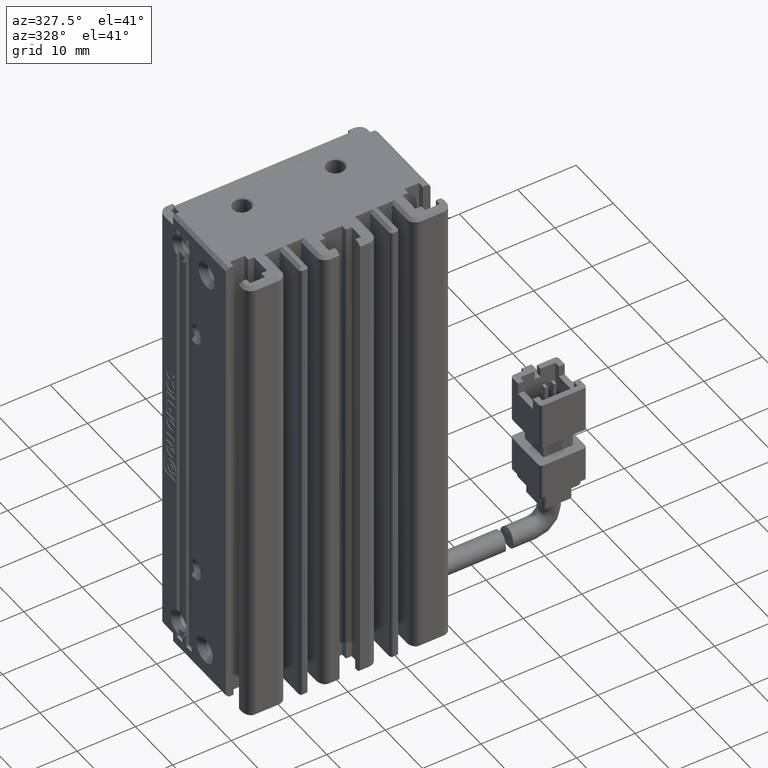
[diagram: clean part render]
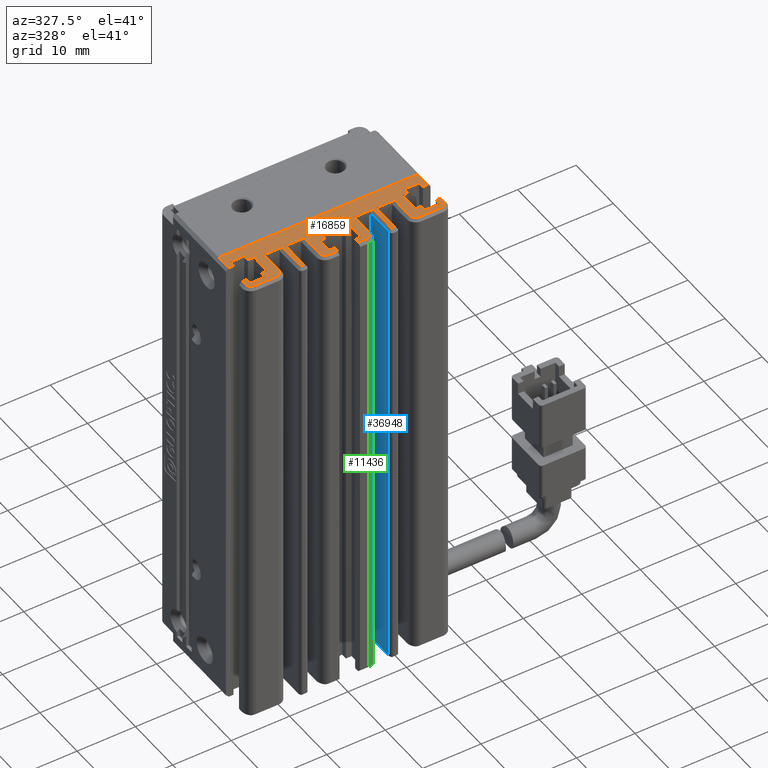
[diagram: same view with three faces highlighted in distinct colors, each labeled with its STEP entity id]
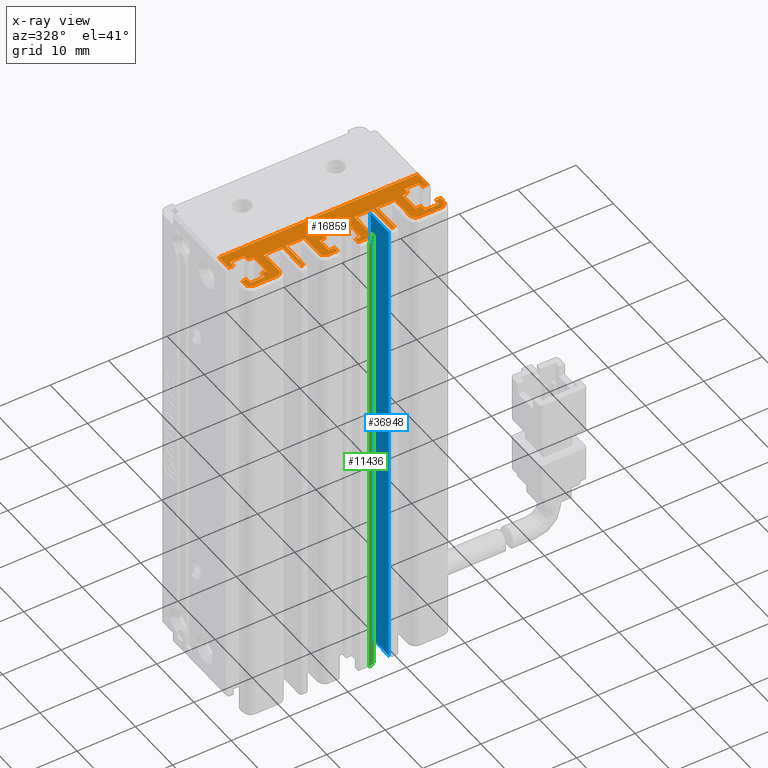
[diagram: x-ray of the same camera — body ghosted, the three highlighted faces saturated]
A machine part, auxiliary view with three faces highlighted in distinct colors.
The next image is the same camera in x-ray (body ghosted, the three faces saturated) — at least one of them is partly hidden behind the body in this view.
Their STEP definitions:

[orange] entity #16859 — the highlighted planar face has unit normal (-0, 0, 1).
#19 = VECTOR ( 'NONE', #7257, 1000.000000000000000 ) ;
#97 = EDGE_CURVE ( 'NONE', #5826, #14053, #20467, .T. ) ;
#101 = CARTESIAN_POINT ( 'NONE',  ( 40.92537974683542500, 15.79073232304837000, -74.00000000000001400 ) ) ;
#172 = VERTEX_POINT ( 'NONE', #1475 ) ;
#419 = CARTESIAN_POINT ( 'NONE',  ( 40.92537974683542500, 11.49073232304838800, -74.00000000000001400 ) ) ;
#484 = DIRECTION ( 'NONE',  ( 1.000000000000000000, 0.0000000000000000000, 0.0000000000000000000 ) ) ;
#489 = ORIENTED_EDGE ( 'NONE', *, *, #14678, .T. ) ;
#623 = EDGE_CURVE ( 'NONE', #20093, #14053, #29204, .T. ) ;
#631 = CARTESIAN_POINT ( 'NONE',  ( 24.72537974683541900, 17.79073232304837000, -74.00000000000001400 ) ) ;
#659 = CARTESIAN_POINT ( 'NONE',  ( 39.17537974683542500, 7.083797468354437600, -74.00000000000001400 ) ) ;
#666 = CARTESIAN_POINT ( 'NONE',  ( 40.92537974683542500, 12.29073232304837200, -74.00000000000001400 ) ) ;
#695 = VERTEX_POINT ( 'NONE', #23657 ) ;
#715 = VERTEX_POINT ( 'NONE', #20185 ) ;
#766 = EDGE_CURVE ( 'NONE', #21141, #715, #25457, .T. ) ;
#796 = CIRCLE ( 'NONE', #35662, 1.000000000065747000 ) ;
#870 = VERTEX_POINT ( 'NONE', #10108 ) ;
#941 = DIRECTION ( 'NONE',  ( 0.0000000000000000000, 1.000000000000000000, -0.0000000000000000000 ) ) ;
#943 = DIRECTION ( 'NONE',  ( 0.0000000000000000000, 0.0000000000000000000, -1.000000000000000000 ) ) ;
#978 = VERTEX_POINT ( 'NONE', #6934 ) ;
#1260 = LINE ( 'NONE', #32387, #18578 ) ;
#1290 = ORIENTED_EDGE ( 'NONE', *, *, #27907, .F. ) ;
#1322 = VERTEX_POINT ( 'NONE', #24233 ) ;
#1475 = CARTESIAN_POINT ( 'NONE',  ( 27.22537974683542900, 12.29073232304837200, -74.00000000000001400 ) ) ;
#1493 = VECTOR ( 'NONE', #7056, 1000.000000000000000 ) ;
#1572 = CARTESIAN_POINT ( 'NONE',  ( 57.92537974683542500, 7.083797468354437600, -74.00000000000001400 ) ) ;
#1707 = DIRECTION ( 'NONE',  ( -0.0000000000000000000, -1.000000000000000000, 0.0000000000000000000 ) ) ;
#1842 = EDGE_CURVE ( 'NONE', #21141, #19210, #13081, .T. ) ;
#1914 = VERTEX_POINT ( 'NONE', #12392 ) ;
#1978 = VECTOR ( 'NONE', #27102, 1000.000000000000000 ) ;
#2098 = VECTOR ( 'NONE', #37861, 1000.000000000000000 ) ;
#2125 = EDGE_CURVE ( 'NONE', #32413, #4554, #6154, .T. ) ;
#2157 = VECTOR ( 'NONE', #21007, 1000.000000000000000 ) ;
#2225 = DIRECTION ( 'NONE',  ( 6.938893903907234700E-015, 1.000000000000000000, -0.0000000000000000000 ) ) ;
#2343 = DIRECTION ( 'NONE',  ( 1.000000000000000000, 0.0000000000000000000, 0.0000000000000000000 ) ) ;
#2374 = EDGE_CURVE ( 'NONE', #21175, #36823, #35005, .T. ) ;
#2407 = ORIENTED_EDGE ( 'NONE', *, *, #4382, .T. ) ;
#2416 = EDGE_CURVE ( 'NONE', #27306, #19789, #3826, .T. ) ;
#2437 = ORIENTED_EDGE ( 'NONE', *, *, #26029, .F. ) ;
#2717 = DIRECTION ( 'NONE',  ( 8.673617379884073300E-015, -1.000000000000000000, -0.0000000000000000000 ) ) ;
#2921 = VERTEX_POINT ( 'NONE', #33559 ) ;
#3030 = EDGE_CURVE ( 'NONE', #23424, #19575, #35346, .T. ) ;
#3108 = CARTESIAN_POINT ( 'NONE',  ( 32.92537974683543200, 7.083797468354437600, -74.00000000000001400 ) ) ;
#3336 = CARTESIAN_POINT ( 'NONE',  ( 48.92537974683541100, 11.49073232304838600, -74.00000000000001400 ) ) ;
#3354 = DIRECTION ( 'NONE',  ( 1.000000000000000000, 0.0000000000000000000, 0.0000000000000000000 ) ) ;
#3382 = VERTEX_POINT ( 'NONE', #29545 ) ;
#3468 = VECTOR ( 'NONE', #4013, 1000.000000000000000 ) ;
#3578 = VECTOR ( 'NONE', #32622, 1000.000000000000000 ) ;
#3606 = VERTEX_POINT ( 'NONE', #7567 ) ;
#3672 = ORIENTED_EDGE ( 'NONE', *, *, #23542, .T. ) ;
#3753 = VECTOR ( 'NONE', #4189, 1000.000000000000000 ) ;
#3766 = CARTESIAN_POINT ( 'NONE',  ( 53.12537974683541400, 12.49073232304837200, -74.00000000000318300 ) ) ;
#3826 = LINE ( 'NONE', #25806, #17924 ) ;
#3932 = CARTESIAN_POINT ( 'NONE',  ( 24.72537974683541900, 7.083797468354437600, -74.00000000000001400 ) ) ;
#4013 = DIRECTION ( 'NONE',  ( -1.000000000000000000, -0.0000000000000000000, -0.0000000000000000000 ) ) ;
#4068 = DIRECTION ( 'NONE',  ( 0.0000000000000000000, 1.000000000000000000, -0.0000000000000000000 ) ) ;
#4189 = DIRECTION ( 'NONE',  ( -1.000000000000000000, 1.734723475976805300E-015, -0.0000000000000000000 ) ) ;
#4191 = CARTESIAN_POINT ( 'NONE',  ( 54.62537974683541400, 16.79073232304837000, -74.00000000000001400 ) ) ;
#4275 = VERTEX_POINT ( 'NONE', #631 ) ;
#4301 = VERTEX_POINT ( 'NONE', #6235 ) ;
#4382 = EDGE_CURVE ( 'NONE', #19210, #18690, #1260, .T. ) ;
#4398 = CARTESIAN_POINT ( 'NONE',  ( 43.67537974683542500, 7.083797468354437600, -74.00000000000001400 ) ) ;
#4554 = VERTEX_POINT ( 'NONE', #4581 ) ;
#4581 = CARTESIAN_POINT ( 'NONE',  ( 42.67537974683542500, 14.79073232304837000, -74.00000000000001400 ) ) ;
#4617 = VECTOR ( 'NONE', #13976, 1000.000000000000000 ) ;
#4682 = CARTESIAN_POINT ( 'NONE',  ( 53.12537974683542800, 11.49073232305455500, -73.99999999998819100 ) ) ;
#4810 = PLANE ( 'NONE',  #35226 ) ;
#4856 = EDGE_CURVE ( 'NONE', #22572, #23614, #35113, .T. ) ;
#4928 = ORIENTED_EDGE ( 'NONE', *, *, #13885, .T. ) ;
#5058 = CARTESIAN_POINT ( 'NONE',  ( 57.92537974683541100, 7.083797468354437600, -74.00000000000001400 ) ) ;
#5068 = ORIENTED_EDGE ( 'NONE', *, *, #10967, .T. ) ;
#5150 = CARTESIAN_POINT ( 'NONE',  ( 52.12537974684072100, 12.49073232304837200, -73.99999999998819100 ) ) ;
#5215 = CARTESIAN_POINT ( 'NONE',  ( 27.22537974683543300, 16.79073232304837400, -74.00000000000001400 ) ) ;
#5354 = DIRECTION ( 'NONE',  ( 1.000000000000000000, 0.0000000000000000000, 0.0000000000000000000 ) ) ;
#5397 = CARTESIAN_POINT ( 'NONE',  ( 48.42537974683543200, 7.083797468354437600, -74.00000000000001400 ) ) ;
#5685 = EDGE_CURVE ( 'NONE', #31359, #6260, #13773, .T. ) ;
#5734 = VECTOR ( 'NONE', #4068, 1000.000000000000000 ) ;
#5826 = VERTEX_POINT ( 'NONE', #33904 ) ;
#5873 = DIRECTION ( 'NONE',  ( -1.000000000000000000, 0.0000000000000000000, 0.0000000000000000000 ) ) ;
#5898 = ORIENTED_EDGE ( 'NONE', *, *, #33228, .F. ) ;
#5903 = ORIENTED_EDGE ( 'NONE', *, *, #17628, .F. ) ;
#5968 = DIRECTION ( 'NONE',  ( 1.000000000000000000, 2.001604010742476800E-015, -0.0000000000000000000 ) ) ;
#6113 = AXIS2_PLACEMENT_3D ( 'NONE', #15567, #30064, #9796 ) ;
#6154 = LINE ( 'NONE', #18869, #20323 ) ;
#6235 = CARTESIAN_POINT ( 'NONE',  ( 56.92537974683542500, 11.49073232302613500, -74.00000000004503400 ) ) ;
#6260 = VERTEX_POINT ( 'NONE', #18826 ) ;
#6377 = VERTEX_POINT ( 'NONE', #19334 ) ;
#6470 = EDGE_CURVE ( 'NONE', #19789, #30806, #12362, .T. ) ;
#6534 = ORIENTED_EDGE ( 'NONE', *, *, #31832, .T. ) ;
#6687 = ORIENTED_EDGE ( 'NONE', *, *, #32560, .F. ) ;
#6724 = ORIENTED_EDGE ( 'NONE', *, *, #14460, .T. ) ;
#6735 = CARTESIAN_POINT ( 'NONE',  ( 39.17537974683542500, 14.79073232304837000, -74.00000000000001400 ) ) ;
#6748 = LINE ( 'NONE', #7436, #25068 ) ;
#6749 = CARTESIAN_POINT ( 'NONE',  ( 42.67537974683542500, 12.29073232304837200, -74.00000000000001400 ) ) ;
#6754 = CARTESIAN_POINT ( 'NONE',  ( 27.22537974683543600, 13.29073232304837000, -74.00000000000001400 ) ) ;
#6882 = ORIENTED_EDGE ( 'NONE', *, *, #26100, .F. ) ;
#6934 = CARTESIAN_POINT ( 'NONE',  ( 42.67537974683542500, 15.79073232304837000, -74.00000000000001400 ) ) ;
#6980 = ORIENTED_EDGE ( 'NONE', *, *, #32450, .T. ) ;
#6997 = VERTEX_POINT ( 'NONE', #37076 ) ;
#7056 = DIRECTION ( 'NONE',  ( -1.000000000000000000, 1.334402673828318000E-015, -0.0000000000000000000 ) ) ;
#7078 = LINE ( 'NONE', #22275, #3468 ) ;
#7239 = ORIENTED_EDGE ( 'NONE', *, *, #6470, .T. ) ;
#7257 = DIRECTION ( 'NONE',  ( 0.0000000000000000000, 1.000000000000000000, -0.0000000000000000000 ) ) ;
#7295 = DIRECTION ( 'NONE',  ( -8.673617379884043400E-015, -1.000000000000000000, -0.0000000000000000000 ) ) ;
#7364 = VECTOR ( 'NONE', #1707, 1000.000000000000000 ) ;
#7427 = CARTESIAN_POINT ( 'NONE',  ( 33.42537974683543200, 7.083797468354437600, -74.00000000000001400 ) ) ;
#7436 = CARTESIAN_POINT ( 'NONE',  ( 57.12537974683549900, 7.083797468354550400, -74.00000000000001400 ) ) ;
#7448 = LINE ( 'NONE', #11998, #1978 ) ;
#7521 = VERTEX_POINT ( 'NONE', #11920 ) ;
#7567 = CARTESIAN_POINT ( 'NONE',  ( 57.12537974683542100, 17.79073232304837000, -74.00000000000001400 ) ) ;
#7574 = LINE ( 'NONE', #20361, #2157 ) ;
#7734 = LINE ( 'NONE', #16198, #19 ) ;
#7739 = EDGE_CURVE ( 'NONE', #695, #31359, #30906, .T. ) ;
#7782 = CARTESIAN_POINT ( 'NONE',  ( 28.22537974683543600, 7.083797468354437600, -74.00000000000001400 ) ) ;
#7829 = EDGE_CURVE ( 'NONE', #8667, #21175, #15241, .T. ) ;
#8000 = ORIENTED_EDGE ( 'NONE', *, *, #18193, .T. ) ;
#8085 = EDGE_CURVE ( 'NONE', #22123, #29078, #11042, .T. ) ;
#8129 = VERTEX_POINT ( 'NONE', #6754 ) ;
#8142 = ORIENTED_EDGE ( 'NONE', *, *, #20108, .F. ) ;
#8272 = ORIENTED_EDGE ( 'NONE', *, *, #24934, .T. ) ;
#8430 = ORIENTED_EDGE ( 'NONE', *, *, #22056, .T. ) ;
#8667 = VERTEX_POINT ( 'NONE', #11033 ) ;
#8882 = CARTESIAN_POINT ( 'NONE',  ( 40.92537974683541100, 13.29073232304834400, -74.00000000000001400 ) ) ;
#8921 = EDGE_CURVE ( 'NONE', #172, #2921, #12327, .T. ) ;
#8943 = VECTOR ( 'NONE', #484, 1000.000000000000000 ) ;
#9050 = DIRECTION ( 'NONE',  ( -0.0000000000000000000, -1.000000000000000000, 0.0000000000000000000 ) ) ;
#9169 = DIRECTION ( 'NONE',  ( -1.000000000000000000, -1.239088197126290800E-016, -0.0000000000000000000 ) ) ;
#9438 = CARTESIAN_POINT ( 'NONE',  ( 36.62537974683543500, 16.49073232304837000, -74.00000000000001400 ) ) ;
#9613 = EDGE_CURVE ( 'NONE', #16101, #8129, #33837, .T. ) ;
#9689 = VECTOR ( 'NONE', #10215, 1000.000000000000000 ) ;
#9712 = LINE ( 'NONE', #25566, #20260 ) ;
#9786 = ORIENTED_EDGE ( 'NONE', *, *, #8085, .T. ) ;
#9796 = DIRECTION ( 'NONE',  ( -1.000000000000000000, 0.0000000000000000000, 0.0000000000000000000 ) ) ;
#9842 = DIRECTION ( 'NONE',  ( 6.938893903907221300E-015, -1.000000000000000000, -0.0000000000000000000 ) ) ;
#9900 = EDGE_CURVE ( 'NONE', #17070, #7521, #13740, .T. ) ;
#9967 = DIRECTION ( 'NONE',  ( 1.000000000000000000, 1.734723475976805300E-015, -0.0000000000000000000 ) ) ;
#10001 = VERTEX_POINT ( 'NONE', #15283 ) ;
#10108 = CARTESIAN_POINT ( 'NONE',  ( 48.42537974683543200, 16.49073232304837000, -74.00000000000001400 ) ) ;
#10145 = ORIENTED_EDGE ( 'NONE', *, *, #19531, .F. ) ;
#10215 = DIRECTION ( 'NONE',  ( 0.0000000000000000000, 1.000000000000000000, -0.0000000000000000000 ) ) ;
#10264 = DIRECTION ( 'NONE',  ( 1.000000000000000000, 0.0000000000000000000, 0.0000000000000000000 ) ) ;
#10544 = LINE ( 'NONE', #31875, #33027 ) ;
#10631 = VERTEX_POINT ( 'NONE', #21394 ) ;
#10775 = CARTESIAN_POINT ( 'NONE',  ( 48.42537974683542500, 11.49073232304838600, -74.00000000000001400 ) ) ;
#10843 = VECTOR ( 'NONE', #28353, 1000.000000000000000 ) ;
#10959 = VECTOR ( 'NONE', #34927, 1000.000000000000000 ) ;
#10960 = AXIS2_PLACEMENT_3D ( 'NONE', #3766, #943, #27157 ) ;
#10967 = EDGE_CURVE ( 'NONE', #19025, #10631, #16766, .T. ) ;
#11033 = CARTESIAN_POINT ( 'NONE',  ( 33.42537974683543200, 11.49073232304837200, -74.00000000000001400 ) ) ;
#11042 = LINE ( 'NONE', #20813, #34049 ) ;
#11138 = CARTESIAN_POINT ( 'NONE',  ( 37.62537974683543500, 12.49073232304837000, -74.00000000000318300 ) ) ;
#11514 = ORIENTED_EDGE ( 'NONE', *, *, #7739, .F. ) ;
#11568 = DIRECTION ( 'NONE',  ( 0.0000000000000000000, 0.0000000000000000000, -1.000000000000000000 ) ) ;
#11626 = CARTESIAN_POINT ( 'NONE',  ( 42.67537974683542500, 7.083797468354437600, -74.00000000000001400 ) ) ;
#11681 = VECTOR ( 'NONE', #34120, 1000.000000000000000 ) ;
#11770 = VERTEX_POINT ( 'NONE', #16109 ) ;
#11825 = DIRECTION ( 'NONE',  ( -1.000000000000000000, 0.0000000000000000000, 0.0000000000000000000 ) ) ;
#11833 = CIRCLE ( 'NONE', #31616, 1.000000000013642900 ) ;
#11910 = VECTOR ( 'NONE', #26353, 1000.000000000000000 ) ;
#11920 = CARTESIAN_POINT ( 'NONE',  ( 45.22537974683540100, 16.49073232304837000, -74.00000000000001400 ) ) ;
#11998 = CARTESIAN_POINT ( 'NONE',  ( 23.92537974683542500, 7.083797468354437600, -74.00000000000001400 ) ) ;
#12008 = DIRECTION ( 'NONE',  ( -0.0000000000000000000, -1.000000000000000000, -0.0000000000000000000 ) ) ;
#12135 = VECTOR ( 'NONE', #3354, 1000.000000000000000 ) ;
#12139 = VECTOR ( 'NONE', #941, 1000.000000000000000 ) ;
#12194 = DIRECTION ( 'NONE',  ( -1.000000000000000000, -0.0000000000000000000, -0.0000000000000000000 ) ) ;
#12224 = EDGE_CURVE ( 'NONE', #29078, #22572, #7448, .T. ) ;
#12228 = ORIENTED_EDGE ( 'NONE', *, *, #17645, .T. ) ;
#12327 = LINE ( 'NONE', #15003, #26989 ) ;
#12362 = LINE ( 'NONE', #31312, #4617 ) ;
#12392 = CARTESIAN_POINT ( 'NONE',  ( 57.92537974683542500, 16.79073232304836700, -74.00000000000000000 ) ) ;
#12525 = CARTESIAN_POINT ( 'NONE',  ( 57.12537974683542100, 12.29073232304837600, -74.00000000000001400 ) ) ;
#12632 = LINE ( 'NONE', #101, #8943 ) ;
#12805 = CARTESIAN_POINT ( 'NONE',  ( 40.92537974683543900, 13.29073232304833900, -74.00000000000001400 ) ) ;
#12812 = LINE ( 'NONE', #12965, #33963 ) ;
#12840 = CARTESIAN_POINT ( 'NONE',  ( 28.72537974683542900, 11.49073232306019300, -73.99999999999607800 ) ) ;
#12861 = EDGE_CURVE ( 'NONE', #34191, #1322, #18337, .T. ) ;
#12863 = DIRECTION ( 'NONE',  ( 1.000000000000000000, 0.0000000000000000000, 0.0000000000000000000 ) ) ;
#12927 = DIRECTION ( 'NONE',  ( -8.673617379884043400E-015, -1.000000000000000000, -0.0000000000000000000 ) ) ;
#12965 = CARTESIAN_POINT ( 'NONE',  ( 54.62537974683547000, 7.083797468354556600, -74.00000000000001400 ) ) ;
#13081 = LINE ( 'NONE', #11626, #14426 ) ;
#13139 = EDGE_CURVE ( 'NONE', #34191, #19268, #33332, .T. ) ;
#13165 = CARTESIAN_POINT ( 'NONE',  ( 40.92537974683543900, 13.29073232304834700, -74.00000000000001400 ) ) ;
#13218 = ORIENTED_EDGE ( 'NONE', *, *, #12861, .T. ) ;
#13232 = CARTESIAN_POINT ( 'NONE',  ( 24.72537974683542200, 13.29073232304837200, -74.00000000000001400 ) ) ;
#13301 = LINE ( 'NONE', #34666, #10959 ) ;
#13351 = DIRECTION ( 'NONE',  ( 1.000000000000000000, 0.0000000000000000000, 0.0000000000000000000 ) ) ;
#13400 = VECTOR ( 'NONE', #21994, 1000.000000000000000 ) ;
#13428 = LINE ( 'NONE', #7782, #20706 ) ;
#13507 = LINE ( 'NONE', #17928, #5734 ) ;
#13552 = DIRECTION ( 'NONE',  ( -0.0000000000000000000, -1.000000000000000000, 0.0000000000000000000 ) ) ;
#13608 = VECTOR ( 'NONE', #16557, 1000.000000000000000 ) ;
#13664 = DIRECTION ( 'NONE',  ( 0.0000000000000000000, 1.000000000000000000, -0.0000000000000000000 ) ) ;
#13740 = LINE ( 'NONE', #17447, #11910 ) ;
#13773 = LINE ( 'NONE', #30534, #3753 ) ;
#13885 = EDGE_CURVE ( 'NONE', #10001, #978, #12632, .T. ) ;
#13964 = DIRECTION ( 'NONE',  ( -1.000000000000000000, 0.0000000000000000000, 0.0000000000000000000 ) ) ;
#13976 = DIRECTION ( 'NONE',  ( -0.0000000000000000000, -1.000000000000000000, 0.0000000000000000000 ) ) ;
#14048 = VECTOR ( 'NONE', #28356, 1000.000000000000000 ) ;
#14053 = VERTEX_POINT ( 'NONE', #12840 ) ;
#14094 = DIRECTION ( 'NONE',  ( 0.0000000000000000000, 0.0000000000000000000, -1.000000000000000000 ) ) ;
#14253 = AXIS2_PLACEMENT_3D ( 'NONE', #32028, #32293, #35008 ) ;
#14262 = DIRECTION ( 'NONE',  ( 1.000000000000000000, 0.0000000000000000000, 0.0000000000000000000 ) ) ;
#14426 = VECTOR ( 'NONE', #12008, 1000.000000000000000 ) ;
#14460 = EDGE_CURVE ( 'NONE', #34032, #20956, #34100, .T. ) ;
#14472 = VERTEX_POINT ( 'NONE', #29475 ) ;
#14560 = CARTESIAN_POINT ( 'NONE',  ( 23.92537974683542500, 16.79073232304837400, -74.00000000000001400 ) ) ;
#14564 = EDGE_CURVE ( 'NONE', #1914, #22123, #27584, .T. ) ;
#14598 = ORIENTED_EDGE ( 'NONE', *, *, #35140, .T. ) ;
#14678 = EDGE_CURVE ( 'NONE', #36823, #19268, #26664, .T. ) ;
#14842 = VECTOR ( 'NONE', #9967, 1000.000000000000000 ) ;
#14849 = VECTOR ( 'NONE', #5968, 1000.000000000000000 ) ;
#14906 = EDGE_CURVE ( 'NONE', #32681, #33045, #22495, .T. ) ;
#15003 = CARTESIAN_POINT ( 'NONE',  ( 40.92537974683542500, 12.29073232304837200, -74.00000000000001400 ) ) ;
#15233 = CARTESIAN_POINT ( 'NONE',  ( 23.92537974683406100, 12.49073232304837000, -73.99999999998819100 ) ) ;
#15241 = LINE ( 'NONE', #7427, #33142 ) ;
#15283 = CARTESIAN_POINT ( 'NONE',  ( 39.17537974683542500, 15.79073232304837000, -74.00000000000001400 ) ) ;
#15289 = ORIENTED_EDGE ( 'NONE', *, *, #623, .F. ) ;
#15320 = LINE ( 'NONE', #8882, #14849 ) ;
#15340 = EDGE_CURVE ( 'NONE', #695, #3606, #13301, .T. ) ;
#15472 = ORIENTED_EDGE ( 'NONE', *, *, #13139, .F. ) ;
#15567 = CARTESIAN_POINT ( 'NONE',  ( 24.92537974683542500, 12.49073232304837000, -73.99999999994634000 ) ) ;
#15874 = LINE ( 'NONE', #28615, #13608 ) ;
#15883 = CARTESIAN_POINT ( 'NONE',  ( 40.92537974683542500, 11.49073232304837200, -74.00000000000001400 ) ) ;
#15927 = LINE ( 'NONE', #5397, #30604 ) ;
#16083 = EDGE_CURVE ( 'NONE', #870, #34032, #15927, .T. ) ;
#16092 = LINE ( 'NONE', #659, #28027 ) ;
#16101 = VERTEX_POINT ( 'NONE', #23271 ) ;
#16103 = ORIENTED_EDGE ( 'NONE', *, *, #2374, .T. ) ;
#16109 = CARTESIAN_POINT ( 'NONE',  ( 57.12537974683542800, 13.29073232304837600, -74.00000000000001400 ) ) ;
#16198 = CARTESIAN_POINT ( 'NONE',  ( 48.92537974683541800, 7.083797468354437600, -74.00000000000001400 ) ) ;
#16212 = DIRECTION ( 'NONE',  ( -1.000000000000000000, 1.734723475976805300E-015, -0.0000000000000000000 ) ) ;
#16430 = CARTESIAN_POINT ( 'NONE',  ( 40.92537974683542500, 12.29073232304837200, -74.00000000000001400 ) ) ;
#16557 = DIRECTION ( 'NONE',  ( -6.938893903907234700E-015, 1.000000000000000000, -0.0000000000000000000 ) ) ;
#16736 = CARTESIAN_POINT ( 'NONE',  ( 40.92537974683543900, 16.79073232304835600, -74.00000000000001400 ) ) ;
#16766 = LINE ( 'NONE', #16430, #10843 ) ;
#16814 = VERTEX_POINT ( 'NONE', #4682 ) ;
#16859 = ADVANCED_FACE ( 'NONE', ( #31776 ), #4810, .T. ) ;
#17070 = VERTEX_POINT ( 'NONE', #17512 ) ;
#17246 = CARTESIAN_POINT ( 'NONE',  ( 57.92537974683541800, 19.49073232304837700, -74.00000000000000000 ) ) ;
#17317 = CARTESIAN_POINT ( 'NONE',  ( 23.92537974683542100, 13.29073232304837200, -74.00000000000001400 ) ) ;
#17342 = EDGE_CURVE ( 'NONE', #3382, #16101, #13428, .T. ) ;
#17447 = CARTESIAN_POINT ( 'NONE',  ( 45.22537974683540100, 7.083797468354437600, -74.00000000000001400 ) ) ;
#17512 = CARTESIAN_POINT ( 'NONE',  ( 45.22537974685200600, 12.49073232304837300, -74.00000000000318300 ) ) ;
#17628 = EDGE_CURVE ( 'NONE', #19025, #1322, #16092, .T. ) ;
#17640 = CARTESIAN_POINT ( 'NONE',  ( 40.92537974683542500, 11.49073232304838600, -74.00000000000001400 ) ) ;
#17645 = EDGE_CURVE ( 'NONE', #16814, #4301, #37270, .T. ) ;
#17741 = VERTEX_POINT ( 'NONE', #12525 ) ;
#17861 = DIRECTION ( 'NONE',  ( -0.0000000000000000000, -1.000000000000000000, 0.0000000000000000000 ) ) ;
#17916 = ORIENTED_EDGE ( 'NONE', *, *, #21401, .T. ) ;
#17924 = VECTOR ( 'NONE', #14262, 1000.000000000000000 ) ;
#17928 = CARTESIAN_POINT ( 'NONE',  ( 42.67537974683542500, 7.083797468354437600, -74.00000000000001400 ) ) ;
#17983 = ORIENTED_EDGE ( 'NONE', *, *, #24101, .T. ) ;
#18004 = CARTESIAN_POINT ( 'NONE',  ( 40.92537974683542500, 14.79073232304837000, -74.00000000000001400 ) ) ;
#18022 = DIRECTION ( 'NONE',  ( 1.000000000000000000, 0.0000000000000000000, 0.0000000000000000000 ) ) ;
#18066 = DIRECTION ( 'NONE',  ( 0.0000000000000000000, 1.000000000000000000, -0.0000000000000000000 ) ) ;
#18193 = EDGE_CURVE ( 'NONE', #32796, #10001, #32564, .T. ) ;
#18265 = CARTESIAN_POINT ( 'NONE',  ( 40.92537974683543900, 16.79073232304838800, -74.00000000000001400 ) ) ;
#18337 = LINE ( 'NONE', #24989, #25255 ) ;
#18392 = CARTESIAN_POINT ( 'NONE',  ( 38.17537974683542500, 7.083797468354437600, -74.00000000000001400 ) ) ;
#18474 = CARTESIAN_POINT ( 'NONE',  ( 29.72537974682360900, 12.49073232304837300, -73.99999999999607800 ) ) ;
#18578 = VECTOR ( 'NONE', #12863, 1000.000000000000000 ) ;
#18690 = VERTEX_POINT ( 'NONE', #30705 ) ;
#18738 = CARTESIAN_POINT ( 'NONE',  ( 48.92537974683541100, 16.49073232304836600, -74.00000000000001400 ) ) ;
#18809 = CARTESIAN_POINT ( 'NONE',  ( 36.62537974683288400, 12.49073232304837000, -73.99999999998819100 ) ) ;
#18826 = CARTESIAN_POINT ( 'NONE',  ( 53.62537974683541400, 16.79073232304837000, -74.00000000000001400 ) ) ;
#18866 = VECTOR ( 'NONE', #23678, 1000.000000000000000 ) ;
#18869 = CARTESIAN_POINT ( 'NONE',  ( 40.92537974683542500, 14.79073232304837000, -74.00000000000001400 ) ) ;
#18965 = LINE ( 'NONE', #31284, #27721 ) ;
#19025 = VERTEX_POINT ( 'NONE', #32104 ) ;
#19043 = CARTESIAN_POINT ( 'NONE',  ( 57.12537974683539200, 7.083797468354324800, -74.00000000000001400 ) ) ;
#19199 = CIRCLE ( 'NONE', #6113, 0.9999999999959069400 ) ;
#19210 = VERTEX_POINT ( 'NONE', #30138 ) ;
#19268 = VERTEX_POINT ( 'NONE', #18809 ) ;
#19334 = CARTESIAN_POINT ( 'NONE',  ( 53.62537974683541400, 13.29073232304837200, -74.00000000000001400 ) ) ;
#19361 = VERTEX_POINT ( 'NONE', #25773 ) ;
#19398 = CARTESIAN_POINT ( 'NONE',  ( 23.92537974683542500, 7.083797468354437600, -74.00000000000001400 ) ) ;
#19428 = CARTESIAN_POINT ( 'NONE',  ( 23.92537974683542500, 19.49073232304837300, -74.00000000000000000 ) ) ;
#19531 = EDGE_CURVE ( 'NONE', #16814, #30806, #32669, .T. ) ;
#19575 = VERTEX_POINT ( 'NONE', #15233 ) ;
#19705 = CARTESIAN_POINT ( 'NONE',  ( 54.62537974683542800, 12.29073232304837400, -74.00000000000001400 ) ) ;
#19737 = VECTOR ( 'NONE', #35767, 1000.000000000000000 ) ;
#19789 = VERTEX_POINT ( 'NONE', #22515 ) ;
#20093 = VERTEX_POINT ( 'NONE', #18474 ) ;
#20108 = EDGE_CURVE ( 'NONE', #5826, #19575, #19199, .T. ) ;
#20156 = CARTESIAN_POINT ( 'NONE',  ( 56.92537974683542500, 12.49073232304837300, -74.00000000006002700 ) ) ;
#20165 = ORIENTED_EDGE ( 'NONE', *, *, #24312, .T. ) ;
#20185 = CARTESIAN_POINT ( 'NONE',  ( 43.67537974683542500, 12.29073232304837200, -74.00000000000001400 ) ) ;
#20260 = VECTOR ( 'NONE', #34445, 1000.000000000000000 ) ;
#20323 = VECTOR ( 'NONE', #37302, 1000.000000000000000 ) ;
#20361 = CARTESIAN_POINT ( 'NONE',  ( 40.92537974683541100, 13.29073232304835100, -74.00000000000001400 ) ) ;
#20467 = LINE ( 'NONE', #15883, #22324 ) ;
#20706 = VECTOR ( 'NONE', #13552, 1000.000000000000000 ) ;
#20754 = ORIENTED_EDGE ( 'NONE', *, *, #2125, .F. ) ;
#20793 = LINE ( 'NONE', #5058, #2098 ) ;
#20813 = CARTESIAN_POINT ( 'NONE',  ( 40.92537974683542500, 19.49073232304837000, -74.00000000000000000 ) ) ;
#20826 = CARTESIAN_POINT ( 'NONE',  ( 40.92537974683542500, 11.49073232304837200, -74.00000000000001400 ) ) ;
#20889 = VECTOR ( 'NONE', #2225, 1000.000000000000000 ) ;
#20956 = VERTEX_POINT ( 'NONE', #3336 ) ;
#20978 = ORIENTED_EDGE ( 'NONE', *, *, #8921, .T. ) ;
#21007 = DIRECTION ( 'NONE',  ( 1.000000000000000000, 1.734723475976805300E-015, -0.0000000000000000000 ) ) ;
#21141 = VERTEX_POINT ( 'NONE', #6749 ) ;
#21175 = VERTEX_POINT ( 'NONE', #27363 ) ;
#21199 = ORIENTED_EDGE ( 'NONE', *, *, #16083, .T. ) ;
#21243 = VERTEX_POINT ( 'NONE', #36899 ) ;
#21345 = EDGE_CURVE ( 'NONE', #2921, #27966, #15874, .T. ) ;
#21394 = CARTESIAN_POINT ( 'NONE',  ( 38.17537974683542500, 12.29073232304837200, -74.00000000000001400 ) ) ;
#21401 = EDGE_CURVE ( 'NONE', #19361, #22872, #21831, .T. ) ;
#21459 = EDGE_CURVE ( 'NONE', #17070, #18690, #796, .T. ) ;
#21733 = CARTESIAN_POINT ( 'NONE',  ( 43.67537974683542500, 14.79073232304837000, -74.00000000000001400 ) ) ;
#21760 = ORIENTED_EDGE ( 'NONE', *, *, #30827, .T. ) ;
#21790 = DIRECTION ( 'NONE',  ( -0.0000000000000000000, 0.0000000000000000000, 1.000000000000000000 ) ) ;
#21831 = LINE ( 'NONE', #25280, #14048 ) ;
#21994 = DIRECTION ( 'NONE',  ( -0.0000000000000000000, -1.000000000000000000, 0.0000000000000000000 ) ) ;
#22056 = EDGE_CURVE ( 'NONE', #14472, #30918, #20793, .T. ) ;
#22123 = VERTEX_POINT ( 'NONE', #17246 ) ;
#22212 = ORIENTED_EDGE ( 'NONE', *, *, #17342, .T. ) ;
#22213 = ORIENTED_EDGE ( 'NONE', *, *, #21459, .F. ) ;
#22242 = EDGE_CURVE ( 'NONE', #27966, #23424, #30894, .T. ) ;
#22275 = CARTESIAN_POINT ( 'NONE',  ( 40.92537974683542500, 12.29073232304837600, -74.00000000000001400 ) ) ;
#22324 = VECTOR ( 'NONE', #18022, 1000.000000000000000 ) ;
#22371 = LINE ( 'NONE', #34329, #30665 ) ;
#22495 = LINE ( 'NONE', #37816, #23890 ) ;
#22515 = CARTESIAN_POINT ( 'NONE',  ( 52.12537974683543500, 16.49073232304836600, -74.00000000000001400 ) ) ;
#22554 = VECTOR ( 'NONE', #18066, 1000.000000000000000 ) ;
#22572 = VERTEX_POINT ( 'NONE', #14560 ) ;
#22712 = EDGE_CURVE ( 'NONE', #20956, #27306, #7734, .T. ) ;
#22753 = ORIENTED_EDGE ( 'NONE', *, *, #27004, .T. ) ;
#22872 = VERTEX_POINT ( 'NONE', #25288 ) ;
#22906 = AXIS2_PLACEMENT_3D ( 'NONE', #11138, #14094, #13964 ) ;
#23074 = VECTOR ( 'NONE', #7295, 1000.000000000000000 ) ;
#23271 = CARTESIAN_POINT ( 'NONE',  ( 28.22537974683543600, 13.29073232304836900, -74.00000000000001400 ) ) ;
#23424 = VERTEX_POINT ( 'NONE', #17317 ) ;
#23476 = LINE ( 'NONE', #3932, #22554 ) ;
#23496 = LINE ( 'NONE', #3108, #34529 ) ;
#23542 = EDGE_CURVE ( 'NONE', #4275, #32681, #26437, .T. ) ;
#23614 = VERTEX_POINT ( 'NONE', #36233 ) ;
#23617 = VECTOR ( 'NONE', #32783, 1000.000000000000000 ) ;
#23657 = CARTESIAN_POINT ( 'NONE',  ( 54.62537974683542800, 17.79073232304837000, -74.00000000000001400 ) ) ;
#23678 = DIRECTION ( 'NONE',  ( 1.000000000000000000, 0.0000000000000000000, 0.0000000000000000000 ) ) ;
#23742 = CARTESIAN_POINT ( 'NONE',  ( 39.17537974683542500, 7.083797468354437600, -74.00000000000001400 ) ) ;
#23890 = VECTOR ( 'NONE', #2717, 1000.000000000000000 ) ;
#24101 = EDGE_CURVE ( 'NONE', #10631, #6997, #30035, .T. ) ;
#24178 = DIRECTION ( 'NONE',  ( 1.000000000000000000, 0.0000000000000000000, -0.0000000000000000000 ) ) ;
#24180 = VECTOR ( 'NONE', #24178, 1000.000000000000000 ) ;
#24233 = CARTESIAN_POINT ( 'NONE',  ( 39.17537974683542500, 11.49073232304837000, -74.00000000000001400 ) ) ;
#24262 = EDGE_LOOP ( 'NONE', ( #27783, #6534, #36222, #33730, #9786, #32023, #24860, #14598, #3672, #37481, #20165, #22212, #32876, #32742, #20978, #33882, #31728, #35441, #8142, #25598, #15289, #8272, #17916, #22753, #37295, #29772, #16103, #489, #15472, #13218, #5903, #5068, #17983, #29767, #8000, #4928, #6882, #20754, #27697, #36628, #26749, #2407, #22213, #31696, #21760, #21199, #6724, #30341, #31485, #7239, #10145, #12228, #6687, #8430, #2437, #27175, #29275, #1290, #5898, #6980, #35798, #11514 ) ) ;
#24263 = EDGE_CURVE ( 'NONE', #8129, #172, #18965, .T. ) ;
#24312 = EDGE_CURVE ( 'NONE', #33045, #3382, #30473, .T. ) ;
#24319 = EDGE_CURVE ( 'NONE', #17741, #35516, #7078, .T. ) ;
#24718 = VECTOR ( 'NONE', #31605, 1000.000000000000000 ) ;
#24804 = LINE ( 'NONE', #18265, #1493 ) ;
#24829 = CARTESIAN_POINT ( 'NONE',  ( 54.62537974683532800, 7.083797468354319400, -74.00000000000001400 ) ) ;
#24860 = ORIENTED_EDGE ( 'NONE', *, *, #4856, .T. ) ;
#24934 = EDGE_CURVE ( 'NONE', #20093, #19361, #9712, .T. ) ;
#24989 = CARTESIAN_POINT ( 'NONE',  ( 40.92537974683542500, 11.49073232304837200, -74.00000000000001400 ) ) ;
#25068 = VECTOR ( 'NONE', #9842, 1000.000000000000000 ) ;
#25228 = CARTESIAN_POINT ( 'NONE',  ( 40.92537974683541100, 16.79073232304839500, -74.00000000000001400 ) ) ;
#25255 = VECTOR ( 'NONE', #13351, 1000.000000000000000 ) ;
#25280 = CARTESIAN_POINT ( 'NONE',  ( 40.92537974683542500, 16.49073232304836600, -74.00000000000001400 ) ) ;
#25288 = CARTESIAN_POINT ( 'NONE',  ( 32.92537974683543200, 16.49073232304836600, -74.00000000000001400 ) ) ;
#25299 = VERTEX_POINT ( 'NONE', #36879 ) ;
#25457 = LINE ( 'NONE', #666, #23617 ) ;
#25547 = CARTESIAN_POINT ( 'NONE',  ( 40.92537974683542500, 16.49073232304836600, -74.00000000000001400 ) ) ;
#25566 = CARTESIAN_POINT ( 'NONE',  ( 29.72537974683543300, 7.083797468354437600, -74.00000000000001400 ) ) ;
#25598 = ORIENTED_EDGE ( 'NONE', *, *, #97, .T. ) ;
#25773 = CARTESIAN_POINT ( 'NONE',  ( 29.72537974683542900, 16.49073232304836600, -74.00000000000001400 ) ) ;
#25806 = CARTESIAN_POINT ( 'NONE',  ( 40.92537974683542500, 16.49073232304836600, -74.00000000000001400 ) ) ;
#25846 = CARTESIAN_POINT ( 'NONE',  ( 57.92537974683541100, 13.29073232304837900, -74.00000000000001400 ) ) ;
#26029 = EDGE_CURVE ( 'NONE', #11770, #30918, #15320, .T. ) ;
#26100 = EDGE_CURVE ( 'NONE', #4554, #978, #13507, .T. ) ;
#26342 = DIRECTION ( 'NONE',  ( 0.0000000000000000000, 1.000000000000000000, -0.0000000000000000000 ) ) ;
#26353 = DIRECTION ( 'NONE',  ( 0.0000000000000000000, 1.000000000000000000, -0.0000000000000000000 ) ) ;
#26437 = LINE ( 'NONE', #29666, #3578 ) ;
#26664 = LINE ( 'NONE', #36685, #13400 ) ;
#26749 = ORIENTED_EDGE ( 'NONE', *, *, #1842, .T. ) ;
#26989 = VECTOR ( 'NONE', #12194, 1000.000000000000000 ) ;
#27004 = EDGE_CURVE ( 'NONE', #22872, #38028, #23496, .T. ) ;
#27102 = DIRECTION ( 'NONE',  ( -0.0000000000000000000, -1.000000000000000000, 0.0000000000000000000 ) ) ;
#27157 = DIRECTION ( 'NONE',  ( -1.000000000000000000, 0.0000000000000000000, 0.0000000000000000000 ) ) ;
#27165 = CARTESIAN_POINT ( 'NONE',  ( 37.62537974683544200, 11.49073232300335000, -74.00000000000318300 ) ) ;
#27175 = ORIENTED_EDGE ( 'NONE', *, *, #29079, .F. ) ;
#27306 = VERTEX_POINT ( 'NONE', #18738 ) ;
#27363 = CARTESIAN_POINT ( 'NONE',  ( 33.42537974683543200, 16.49073232304837000, -74.00000000000001400 ) ) ;
#27529 = LINE ( 'NONE', #4398, #7364 ) ;
#27584 = LINE ( 'NONE', #1572, #9689 ) ;
#27603 = VECTOR ( 'NONE', #5354, 1000.000000000000000 ) ;
#27697 = ORIENTED_EDGE ( 'NONE', *, *, #30582, .T. ) ;
#27717 = LINE ( 'NONE', #20826, #12135 ) ;
#27721 = VECTOR ( 'NONE', #12927, 1000.000000000000000 ) ;
#27783 = ORIENTED_EDGE ( 'NONE', *, *, #15340, .T. ) ;
#27831 = CARTESIAN_POINT ( 'NONE',  ( 40.92537974683542500, 7.083797468354437600, -74.00000000000001400 ) ) ;
#27907 = EDGE_CURVE ( 'NONE', #25299, #35516, #12812, .T. ) ;
#27966 = VERTEX_POINT ( 'NONE', #13232 ) ;
#28027 = VECTOR ( 'NONE', #35885, 1000.000000000000000 ) ;
#28353 = DIRECTION ( 'NONE',  ( -1.000000000000000000, -0.0000000000000000000, -0.0000000000000000000 ) ) ;
#28356 = DIRECTION ( 'NONE',  ( 1.000000000000000000, 0.0000000000000000000, 0.0000000000000000000 ) ) ;
#28615 = CARTESIAN_POINT ( 'NONE',  ( 24.72537974683546100, 7.083797468354324800, -74.00000000000001400 ) ) ;
#28706 = LINE ( 'NONE', #19043, #20889 ) ;
#29078 = VERTEX_POINT ( 'NONE', #19428 ) ;
#29079 = EDGE_CURVE ( 'NONE', #17741, #11770, #28706, .T. ) ;
#29204 = CIRCLE ( 'NONE', #14253, 0.9999999999763531400 ) ;
#29275 = ORIENTED_EDGE ( 'NONE', *, *, #24319, .T. ) ;
#29409 = EDGE_CURVE ( 'NONE', #38028, #8667, #27717, .T. ) ;
#29420 = CARTESIAN_POINT ( 'NONE',  ( 27.22537974683542600, 17.79073232304837000, -74.00000000000001400 ) ) ;
#29475 = CARTESIAN_POINT ( 'NONE',  ( 57.92537974682257800, 12.49073232304837300, -74.00000000004503400 ) ) ;
#29545 = CARTESIAN_POINT ( 'NONE',  ( 28.22537974683543600, 16.79073232304837400, -74.00000000000001400 ) ) ;
#29666 = CARTESIAN_POINT ( 'NONE',  ( 40.92537974683542500, 17.79073232304837000, -74.00000000000001400 ) ) ;
#29767 = ORIENTED_EDGE ( 'NONE', *, *, #36801, .T. ) ;
#29772 = ORIENTED_EDGE ( 'NONE', *, *, #7829, .T. ) ;
#30035 = LINE ( 'NONE', #18392, #12139 ) ;
#30064 = DIRECTION ( 'NONE',  ( 0.0000000000000000000, 0.0000000000000000000, -1.000000000000000000 ) ) ;
#30138 = CARTESIAN_POINT ( 'NONE',  ( 42.67537974683542500, 11.49073232304838800, -74.00000000000001400 ) ) ;
#30341 = ORIENTED_EDGE ( 'NONE', *, *, #22712, .T. ) ;
#30473 = LINE ( 'NONE', #25228, #14842 ) ;
#30534 = CARTESIAN_POINT ( 'NONE',  ( 40.92537974683543900, 16.79073232304839500, -74.00000000000001400 ) ) ;
#30582 = EDGE_CURVE ( 'NONE', #32413, #715, #27529, .T. ) ;
#30604 = VECTOR ( 'NONE', #9050, 1000.000000000000000 ) ;
#30665 = VECTOR ( 'NONE', #13664, 1000.000000000000000 ) ;
#30705 = CARTESIAN_POINT ( 'NONE',  ( 44.22537974683540800, 11.49073232300335700, -74.00000000000318300 ) ) ;
#30806 = VERTEX_POINT ( 'NONE', #5150 ) ;
#30827 = EDGE_CURVE ( 'NONE', #7521, #870, #10544, .T. ) ;
#30892 = CARTESIAN_POINT ( 'NONE',  ( 32.92537974683543200, 11.49073232304837200, -74.00000000000001400 ) ) ;
#30894 = LINE ( 'NONE', #12805, #35960 ) ;
#30906 = LINE ( 'NONE', #24829, #23074 ) ;
#30918 = VERTEX_POINT ( 'NONE', #25846 ) ;
#31284 = CARTESIAN_POINT ( 'NONE',  ( 27.22537974683538000, 7.083797468354556600, -74.00000000000001400 ) ) ;
#31312 = CARTESIAN_POINT ( 'NONE',  ( 52.12537974683542800, 7.083797468354437600, -74.00000000000001400 ) ) ;
#31359 = VERTEX_POINT ( 'NONE', #4191 ) ;
#31485 = ORIENTED_EDGE ( 'NONE', *, *, #2416, .T. ) ;
#31605 = DIRECTION ( 'NONE',  ( -0.0000000000000000000, -1.000000000000000000, 0.0000000000000000000 ) ) ;
#31616 = AXIS2_PLACEMENT_3D ( 'NONE', #20156, #37810, #5873 ) ;
#31696 = ORIENTED_EDGE ( 'NONE', *, *, #9900, .T. ) ;
#31728 = ORIENTED_EDGE ( 'NONE', *, *, #22242, .T. ) ;
#31776 = FACE_OUTER_BOUND ( 'NONE', #24262, .T. ) ;
#31832 = EDGE_CURVE ( 'NONE', #3606, #21243, #6748, .T. ) ;
#31875 = CARTESIAN_POINT ( 'NONE',  ( 40.92537974683542500, 16.49073232304837000, -74.00000000000001400 ) ) ;
#32003 = LINE ( 'NONE', #18004, #24180 ) ;
#32023 = ORIENTED_EDGE ( 'NONE', *, *, #12224, .T. ) ;
#32028 = CARTESIAN_POINT ( 'NONE',  ( 28.72537974683543600, 12.49073232304837000, -73.99999999999607800 ) ) ;
#32104 = CARTESIAN_POINT ( 'NONE',  ( 39.17537974683542500, 12.29073232304837200, -74.00000000000001400 ) ) ;
#32293 = DIRECTION ( 'NONE',  ( 0.0000000000000000000, 0.0000000000000000000, -1.000000000000000000 ) ) ;
#32387 = CARTESIAN_POINT ( 'NONE',  ( 40.92537974683542500, 11.49073232304838600, -74.00000000000001400 ) ) ;
#32413 = VERTEX_POINT ( 'NONE', #21733 ) ;
#32450 = EDGE_CURVE ( 'NONE', #6377, #6260, #22371, .T. ) ;
#32560 = EDGE_CURVE ( 'NONE', #14472, #4301, #11833, .T. ) ;
#32564 = LINE ( 'NONE', #23742, #37649 ) ;
#32622 = DIRECTION ( 'NONE',  ( 1.000000000000000000, 0.0000000000000000000, 0.0000000000000000000 ) ) ;
#32669 = CIRCLE ( 'NONE', #10960, 0.9999999999692477100 ) ;
#32681 = VERTEX_POINT ( 'NONE', #29420 ) ;
#32742 = ORIENTED_EDGE ( 'NONE', *, *, #24263, .T. ) ;
#32783 = DIRECTION ( 'NONE',  ( 1.000000000000000000, 0.0000000000000000000, -0.0000000000000000000 ) ) ;
#32796 = VERTEX_POINT ( 'NONE', #6735 ) ;
#32876 = ORIENTED_EDGE ( 'NONE', *, *, #9613, .T. ) ;
#32902 = VECTOR ( 'NONE', #16212, 1000.000000000000000 ) ;
#33027 = VECTOR ( 'NONE', #2343, 1000.000000000000000 ) ;
#33045 = VERTEX_POINT ( 'NONE', #5215 ) ;
#33142 = VECTOR ( 'NONE', #37197, 1000.000000000000000 ) ;
#33228 = EDGE_CURVE ( 'NONE', #6377, #25299, #7574, .T. ) ;
#33332 = CIRCLE ( 'NONE', #22906, 1.000000000000646100 ) ;
#33559 = CARTESIAN_POINT ( 'NONE',  ( 24.72537974683542600, 12.29073232304837200, -74.00000000000001400 ) ) ;
#33584 = DIRECTION ( 'NONE',  ( -1.000000000000000000, 2.001604010742476800E-015, -0.0000000000000000000 ) ) ;
#33730 = ORIENTED_EDGE ( 'NONE', *, *, #14564, .T. ) ;
#33837 = LINE ( 'NONE', #13165, #32902 ) ;
#33882 = ORIENTED_EDGE ( 'NONE', *, *, #21345, .T. ) ;
#33904 = CARTESIAN_POINT ( 'NONE',  ( 24.92537974683542500, 11.49073232302851700, -73.99999999998819100 ) ) ;
#33963 = VECTOR ( 'NONE', #36474, 1000.000000000000000 ) ;
#34032 = VERTEX_POINT ( 'NONE', #10775 ) ;
#34049 = VECTOR ( 'NONE', #9169, 1000.000000000000000 ) ;
#34100 = LINE ( 'NONE', #17640, #18866 ) ;
#34120 = DIRECTION ( 'NONE',  ( 1.000000000000000000, -1.334402673828318000E-015, -0.0000000000000000000 ) ) ;
#34191 = VERTEX_POINT ( 'NONE', #27165 ) ;
#34329 = CARTESIAN_POINT ( 'NONE',  ( 53.62537974683541400, 7.083797468354437600, -74.00000000000001400 ) ) ;
#34445 = DIRECTION ( 'NONE',  ( 0.0000000000000000000, 1.000000000000000000, -0.0000000000000000000 ) ) ;
#34529 = VECTOR ( 'NONE', #17861, 1000.000000000000000 ) ;
#34666 = CARTESIAN_POINT ( 'NONE',  ( 40.92537974683542500, 17.79073232304837000, -74.00000000000001400 ) ) ;
#34927 = DIRECTION ( 'NONE',  ( 1.000000000000000000, 0.0000000000000000000, 0.0000000000000000000 ) ) ;
#34937 = CARTESIAN_POINT ( 'NONE',  ( 44.22537974683541500, 12.49073232304837000, -74.00000000000318300 ) ) ;
#35005 = LINE ( 'NONE', #25547, #27603 ) ;
#35008 = DIRECTION ( 'NONE',  ( -1.000000000000000000, 0.0000000000000000000, 0.0000000000000000000 ) ) ;
#35113 = LINE ( 'NONE', #16736, #11681 ) ;
#35140 = EDGE_CURVE ( 'NONE', #23614, #4275, #23476, .T. ) ;
#35226 = AXIS2_PLACEMENT_3D ( 'NONE', #27831, #21790, #10264 ) ;
#35346 = LINE ( 'NONE', #19398, #24718 ) ;
#35441 = ORIENTED_EDGE ( 'NONE', *, *, #3030, .T. ) ;
#35516 = VERTEX_POINT ( 'NONE', #19705 ) ;
#35662 = AXIS2_PLACEMENT_3D ( 'NONE', #34937, #11568, #11825 ) ;
#35767 = DIRECTION ( 'NONE',  ( 1.000000000000000000, 0.0000000000000000000, 0.0000000000000000000 ) ) ;
#35788 = EDGE_CURVE ( 'NONE', #1914, #21243, #24804, .T. ) ;
#35798 = ORIENTED_EDGE ( 'NONE', *, *, #5685, .F. ) ;
#35885 = DIRECTION ( 'NONE',  ( -0.0000000000000000000, -1.000000000000000000, -0.0000000000000000000 ) ) ;
#35960 = VECTOR ( 'NONE', #33584, 1000.000000000000000 ) ;
#36222 = ORIENTED_EDGE ( 'NONE', *, *, #35788, .F. ) ;
#36233 = CARTESIAN_POINT ( 'NONE',  ( 24.72537974683541900, 16.79073232304837400, -74.00000000000001400 ) ) ;
#36474 = DIRECTION ( 'NONE',  ( 8.673617379884043400E-015, -1.000000000000000000, -0.0000000000000000000 ) ) ;
#36628 = ORIENTED_EDGE ( 'NONE', *, *, #766, .F. ) ;
#36685 = CARTESIAN_POINT ( 'NONE',  ( 36.62537974683543500, 7.083797468354437600, -74.00000000000001400 ) ) ;
#36801 = EDGE_CURVE ( 'NONE', #6997, #32796, #32003, .T. ) ;
#36823 = VERTEX_POINT ( 'NONE', #9438 ) ;
#36879 = CARTESIAN_POINT ( 'NONE',  ( 54.62537974683542100, 13.29073232304837400, -74.00000000000001400 ) ) ;
#36899 = CARTESIAN_POINT ( 'NONE',  ( 57.12537974683542800, 16.79073232304836700, -74.00000000000001400 ) ) ;
#37076 = CARTESIAN_POINT ( 'NONE',  ( 38.17537974683542500, 14.79073232304837000, -74.00000000000001400 ) ) ;
#37197 = DIRECTION ( 'NONE',  ( 0.0000000000000000000, 1.000000000000000000, -0.0000000000000000000 ) ) ;
#37270 = LINE ( 'NONE', #419, #19737 ) ;
#37295 = ORIENTED_EDGE ( 'NONE', *, *, #29409, .T. ) ;
#37302 = DIRECTION ( 'NONE',  ( -1.000000000000000000, -0.0000000000000000000, -0.0000000000000000000 ) ) ;
#37481 = ORIENTED_EDGE ( 'NONE', *, *, #14906, .T. ) ;
#37649 = VECTOR ( 'NONE', #26342, 1000.000000000000000 ) ;
#37810 = DIRECTION ( 'NONE',  ( 0.0000000000000000000, 0.0000000000000000000, -1.000000000000000000 ) ) ;
#37816 = CARTESIAN_POINT ( 'NONE',  ( 27.22537974683551800, 7.083797468354319400, -74.00000000000001400 ) ) ;
#37861 = DIRECTION ( 'NONE',  ( 0.0000000000000000000, 1.000000000000000000, -0.0000000000000000000 ) ) ;
#38028 = VERTEX_POINT ( 'NONE', #30892 ) ;

[blue] entity #36948 — the highlighted planar face has unit normal (-1, 0, 0).
#1404 = VECTOR ( 'NONE', #20816, 1000.000000000000000 ) ;
#1535 = LINE ( 'NONE', #31380, #34052 ) ;
#2102 = VERTEX_POINT ( 'NONE', #8018 ) ;
#2922 = EDGE_LOOP ( 'NONE', ( #16067, #20552, #30402, #14043 ) ) ;
#3244 = LINE ( 'NONE', #6134, #1404 ) ;
#4748 = DIRECTION ( 'NONE',  ( 0.0000000000000000000, 0.0000000000000000000, 1.000000000000000000 ) ) ;
#4864 = EDGE_CURVE ( 'NONE', #8506, #14174, #18033, .T. ) ;
#6134 = CARTESIAN_POINT ( 'NONE',  ( 47.92537974683541800, 11.49073232304837200, -74.00000000000001400 ) ) ;
#6511 = VERTEX_POINT ( 'NONE', #32566 ) ;
#8018 = CARTESIAN_POINT ( 'NONE',  ( 47.92537974683541800, 16.49073232304837000, -74.50000000000001400 ) ) ;
#8210 = CARTESIAN_POINT ( 'NONE',  ( 47.92537974683541800, 16.49073232304837000, -74.00000000000001400 ) ) ;
#8443 = VECTOR ( 'NONE', #22265, 1000.000000000000000 ) ;
#8506 = VERTEX_POINT ( 'NONE', #25269 ) ;
#14043 = ORIENTED_EDGE ( 'NONE', *, *, #17466, .T. ) ;
#14174 = VERTEX_POINT ( 'NONE', #37104 ) ;
#15327 = LINE ( 'NONE', #8210, #22195 ) ;
#16067 = ORIENTED_EDGE ( 'NONE', *, *, #26385, .F. ) ;
#16798 = FACE_OUTER_BOUND ( 'NONE', #2922, .T. ) ;
#17466 = EDGE_CURVE ( 'NONE', #6511, #2102, #1535, .T. ) ;
#18033 = LINE ( 'NONE', #37212, #8443 ) ;
#20552 = ORIENTED_EDGE ( 'NONE', *, *, #4864, .F. ) ;
#20816 = DIRECTION ( 'NONE',  ( 0.0000000000000000000, 0.0000000000000000000, 1.000000000000000000 ) ) ;
#22195 = VECTOR ( 'NONE', #25386, 1000.000000000000000 ) ;
#22236 = DIRECTION ( 'NONE',  ( -1.000000000000000000, 0.0000000000000000000, 0.0000000000000000000 ) ) ;
#22265 = DIRECTION ( 'NONE',  ( 0.0000000000000000000, 1.000000000000000000, -0.0000000000000000000 ) ) ;
#22492 = EDGE_CURVE ( 'NONE', #8506, #6511, #3244, .T. ) ;
#23156 = DIRECTION ( 'NONE',  ( 0.0000000000000000000, 1.000000000000000000, 0.0000000000000000000 ) ) ;
#25269 = CARTESIAN_POINT ( 'NONE',  ( 47.92537974682586100, 11.49073232304837300, -155.4999999999879500 ) ) ;
#25386 = DIRECTION ( 'NONE',  ( 0.0000000000000000000, 0.0000000000000000000, 1.000000000000000000 ) ) ;
#26385 = EDGE_CURVE ( 'NONE', #14174, #2102, #15327, .T. ) ;
#30402 = ORIENTED_EDGE ( 'NONE', *, *, #22492, .T. ) ;
#31380 = CARTESIAN_POINT ( 'NONE',  ( 47.92537974683541800, 7.083797468354437600, -74.50000000000001400 ) ) ;
#32566 = CARTESIAN_POINT ( 'NONE',  ( 47.92537974683541800, 11.49073232304837700, -74.50000000000001400 ) ) ;
#33965 = PLANE ( 'NONE',  #34852 ) ;
#34052 = VECTOR ( 'NONE', #23156, 1000.000000000000000 ) ;
#34086 = CARTESIAN_POINT ( 'NONE',  ( 47.92537974683541800, 7.083797468354437600, -74.00000000000001400 ) ) ;
#34852 = AXIS2_PLACEMENT_3D ( 'NONE', #34086, #22236, #4748 ) ;
#36948 = ADVANCED_FACE ( 'NONE', ( #16798 ), #33965, .T. ) ;
#37104 = CARTESIAN_POINT ( 'NONE',  ( 47.92537974683541800, 16.49073232304837300, -155.5000000000000000 ) ) ;
#37212 = CARTESIAN_POINT ( 'NONE',  ( 47.92537974683541800, 7.083797468354437600, -155.5000000000000000 ) ) ;

[green] entity #11436 — the highlighted cylindrical surface (edge-blend (fillet) strip) has radius 1.5 mm, axis along (-0, -0, -1).
#2496 = CARTESIAN_POINT ( 'NONE',  ( 44.22537974683541500, 12.49073232304837000, -74.00000000000001400 ) ) ;
#2684 = AXIS2_PLACEMENT_3D ( 'NONE', #30218, #36158, #9315 ) ;
#3782 = DIRECTION ( 'NONE',  ( 0.0000000000000000000, 0.0000000000000000000, 1.000000000000000000 ) ) ;
#4297 = CARTESIAN_POINT ( 'NONE',  ( 44.22537974683541500, 12.49073232304837000, -155.5000000000000000 ) ) ;
#5053 = DIRECTION ( 'NONE',  ( -0.0000000000000000000, -0.0000000000000000000, -1.000000000000000000 ) ) ;
#5225 = EDGE_CURVE ( 'NONE', #18464, #13622, #10205, .T. ) ;
#5942 = VERTEX_POINT ( 'NONE', #13633 ) ;
#6421 = CARTESIAN_POINT ( 'NONE',  ( 44.22537974683540800, 10.99073232304568400, -74.49999999998362900 ) ) ;
#7142 = VECTOR ( 'NONE', #27496, 1000.000000000000000 ) ;
#8030 = ORIENTED_EDGE ( 'NONE', *, *, #24616, .T. ) ;
#9315 = DIRECTION ( 'NONE',  ( -1.000000000000000000, 0.0000000000000000000, 0.0000000000000000000 ) ) ;
#10205 = LINE ( 'NONE', #27508, #18391 ) ;
#11436 = ADVANCED_FACE ( 'NONE', ( #27729 ), #12151, .T. ) ;
#12151 = CYLINDRICAL_SURFACE ( 'NONE', #32931, 1.500000000000001300 ) ;
#12757 = CARTESIAN_POINT ( 'NONE',  ( 45.72537974683262300, 12.49073232304838000, -74.49999999998362900 ) ) ;
#13622 = VERTEX_POINT ( 'NONE', #12757 ) ;
#13633 = CARTESIAN_POINT ( 'NONE',  ( 44.22537974683540100, 10.99073232305989500, -155.5000000000163700 ) ) ;
#13852 = ORIENTED_EDGE ( 'NONE', *, *, #5225, .T. ) ;
#15535 = CIRCLE ( 'NONE', #29380, 1.500000000000001300 ) ;
#16315 = EDGE_CURVE ( 'NONE', #17119, #5942, #32799, .T. ) ;
#17119 = VERTEX_POINT ( 'NONE', #6421 ) ;
#18391 = VECTOR ( 'NONE', #36148, 1000.000000000000000 ) ;
#18464 = VERTEX_POINT ( 'NONE', #29070 ) ;
#21216 = CIRCLE ( 'NONE', #2684, 1.500000000000001300 ) ;
#24228 = ORIENTED_EDGE ( 'NONE', *, *, #36240, .T. ) ;
#24465 = DIRECTION ( 'NONE',  ( -1.000000000000000000, 4.625929269271481400E-015, 0.0000000000000000000 ) ) ;
#24616 = EDGE_CURVE ( 'NONE', #13622, #17119, #21216, .T. ) ;
#27496 = DIRECTION ( 'NONE',  ( -0.0000000000000000000, -0.0000000000000000000, -1.000000000000000000 ) ) ;
#27508 = CARTESIAN_POINT ( 'NONE',  ( 45.72537974683541500, 12.49073232304838000, -74.00000000000001400 ) ) ;
#27729 = FACE_OUTER_BOUND ( 'NONE', #35983, .T. ) ;
#28435 = DIRECTION ( 'NONE',  ( -1.000000000000000000, 0.0000000000000000000, 0.0000000000000000000 ) ) ;
#29070 = CARTESIAN_POINT ( 'NONE',  ( 45.72537974681841200, 12.49073232304837900, -155.5000000000163700 ) ) ;
#29380 = AXIS2_PLACEMENT_3D ( 'NONE', #4297, #3782, #24465 ) ;
#30218 = CARTESIAN_POINT ( 'NONE',  ( 44.22537974683541500, 12.49073232304837000, -74.50000000000001400 ) ) ;
#32773 = CARTESIAN_POINT ( 'NONE',  ( 44.22537974683540100, 10.99073232304837000, -74.00000000000001400 ) ) ;
#32799 = LINE ( 'NONE', #32773, #7142 ) ;
#32931 = AXIS2_PLACEMENT_3D ( 'NONE', #2496, #5053, #28435 ) ;
#35983 = EDGE_LOOP ( 'NONE', ( #36674, #24228, #13852, #8030 ) ) ;
#36148 = DIRECTION ( 'NONE',  ( 0.0000000000000000000, 0.0000000000000000000, 1.000000000000000000 ) ) ;
#36158 = DIRECTION ( 'NONE',  ( -0.0000000000000000000, -0.0000000000000000000, -1.000000000000000000 ) ) ;
#36240 = EDGE_CURVE ( 'NONE', #5942, #18464, #15535, .T. ) ;
#36674 = ORIENTED_EDGE ( 'NONE', *, *, #16315, .T. ) ;